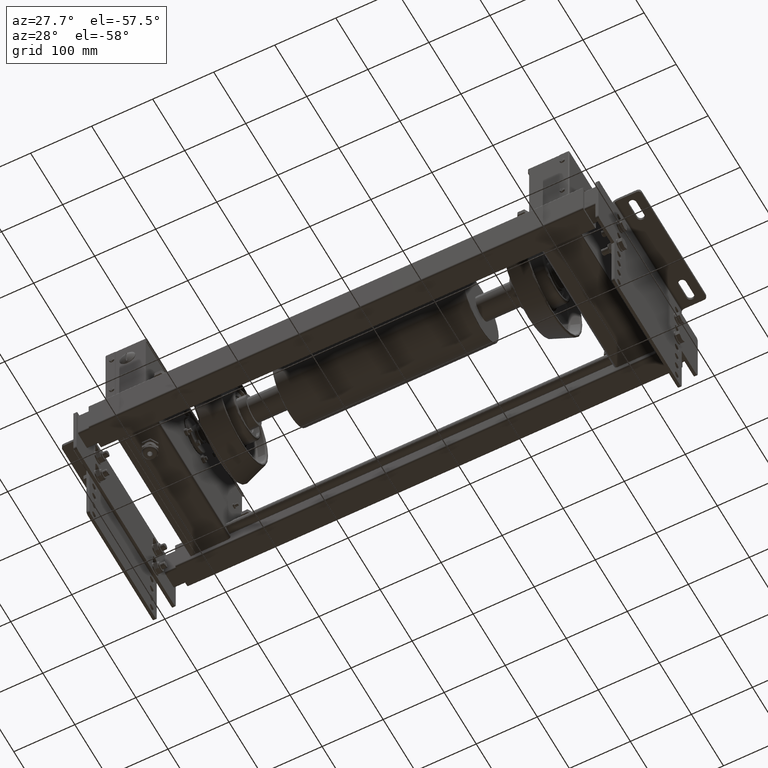
[diagram: clean part render]
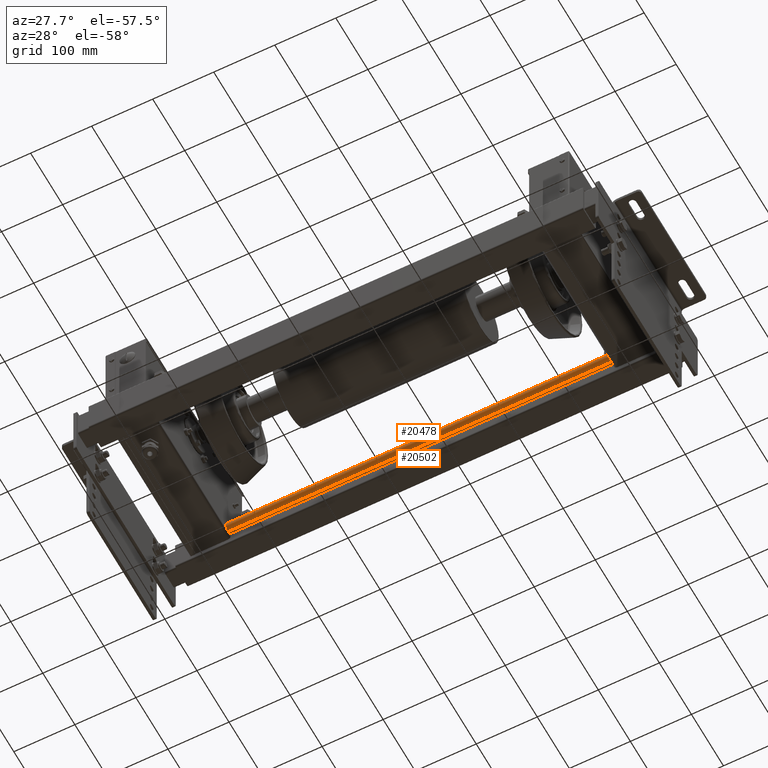
[diagram: same view with one multi-face feature highlighted, each face labeled with its STEP entity id]
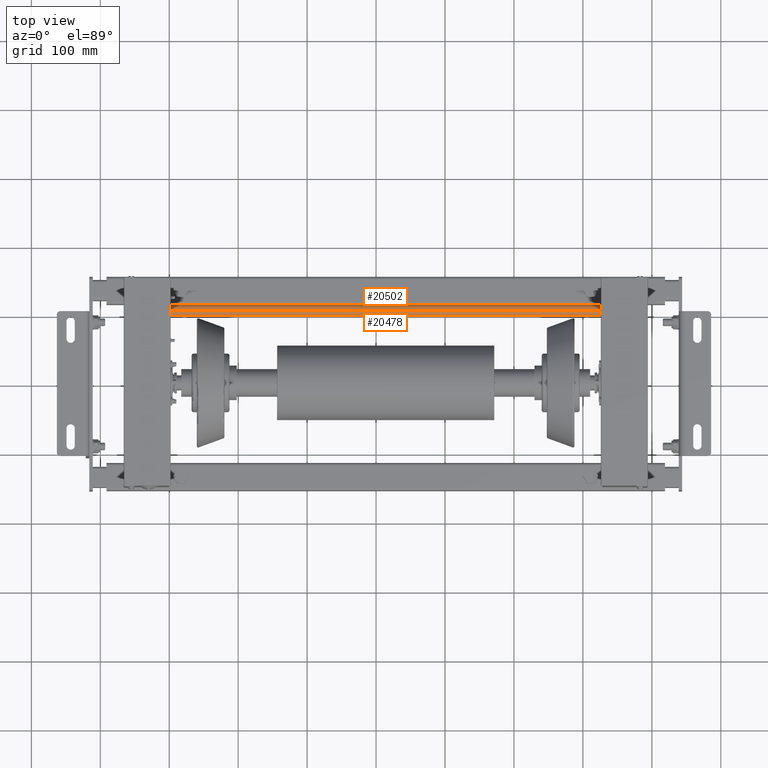
[diagram: same view with one multi-face feature highlighted, each face labeled with its STEP entity id]
A machine part, auxiliary view. The highlighted faces form ONE feature: a constant-radius fillet chain: 2 tangent blend faces with common blend radius 8 mm. The faces share edges in the B-rep.
A second angle (top view) of the same feature is appended — it is thin or edge-on in the first view.
Their STEP definitions:
[1] entity #20478 (Cylinder):
#20437=CARTESIAN_POINT('',(0.0,0.0,-325.0));
#20438=DIRECTION('',(0.0,0.0,1.0));
#20439=DIRECTION('',(1.0,0.0,0.0));
#20440=AXIS2_PLACEMENT_3D('',#20437,#20438,#20439);
#20441=CYLINDRICAL_SURFACE('',#20440,8.0);
#20442=CARTESIAN_POINT('',(8.0,0.0,309.0));
#20443=VERTEX_POINT('',#20442);
#20444=CARTESIAN_POINT('',(8.0,0.0,-325.0));
#20445=VERTEX_POINT('',#20444);
#20446=CARTESIAN_POINT('',(8.0,0.0,309.0));
#20447=DIRECTION('',(0.0,0.0,-1.0));
#20448=VECTOR('',#20447,634.0);
#20449=LINE('',#20446,#20448);
#20450=EDGE_CURVE('',#20443,#20445,#20449,.T.);
#20451=ORIENTED_EDGE('',*,*,#20450,.F.);
#20452=CARTESIAN_POINT('',(-8.0,-9.797174E-016,309.0));
#20453=VERTEX_POINT('',#20452);
#20454=CARTESIAN_POINT('',(0.0,0.0,309.0));
#20455=DIRECTION('',(0.0,0.0,-1.0));
#20456=DIRECTION('',(1.0,0.0,0.0));
#20457=AXIS2_PLACEMENT_3D('',#20454,#20455,#20456);
#20458=CIRCLE('',#20457,8.0);
#20459=EDGE_CURVE('',#20443,#20453,#20458,.T.);
#20460=ORIENTED_EDGE('',*,*,#20459,.T.);
#20461=CARTESIAN_POINT('',(-8.0,-9.797174E-016,-325.0));
#20462=VERTEX_POINT('',#20461);
#20463=CARTESIAN_POINT('',(-8.0,-9.797174E-016,309.0));
#20464=DIRECTION('',(0.0,0.0,-1.0));
#20465=VECTOR('',#20464,634.0);
#20466=LINE('',#20463,#20465);
#20467=EDGE_CURVE('',#20453,#20462,#20466,.T.);
#20468=ORIENTED_EDGE('',*,*,#20467,.T.);
#20469=CARTESIAN_POINT('',(0.0,0.0,-325.0));
#20470=DIRECTION('',(0.0,0.0,1.0));
#20471=DIRECTION('',(1.0,0.0,0.0));
#20472=AXIS2_PLACEMENT_3D('',#20469,#20470,#20471);
#20473=CIRCLE('',#20472,8.0);
#20474=EDGE_CURVE('',#20462,#20445,#20473,.T.);
#20475=ORIENTED_EDGE('',*,*,#20474,.T.);
#20476=EDGE_LOOP('',(#20451,#20460,#20468,#20475));
#20477=FACE_OUTER_BOUND('',#20476,.T.);
#20478=ADVANCED_FACE('',(#20477),#20441,.T.);
[2] entity #20502 (Cylinder):
#20442=CARTESIAN_POINT('',(8.0,0.0,309.0));
#20443=VERTEX_POINT('',#20442);
#20444=CARTESIAN_POINT('',(8.0,0.0,-325.0));
#20445=VERTEX_POINT('',#20444);
#20446=CARTESIAN_POINT('',(8.0,0.0,309.0));
#20447=DIRECTION('',(0.0,0.0,-1.0));
#20448=VECTOR('',#20447,634.0);
#20449=LINE('',#20446,#20448);
#20450=EDGE_CURVE('',#20443,#20445,#20449,.T.);
#20452=CARTESIAN_POINT('',(-8.0,-9.797174E-016,309.0));
#20453=VERTEX_POINT('',#20452);
#20461=CARTESIAN_POINT('',(-8.0,-9.797174E-016,-325.0));
#20462=VERTEX_POINT('',#20461);
#20463=CARTESIAN_POINT('',(-8.0,-9.797174E-016,309.0));
#20464=DIRECTION('',(0.0,0.0,-1.0));
#20465=VECTOR('',#20464,634.0);
#20466=LINE('',#20463,#20465);
#20467=EDGE_CURVE('',#20453,#20462,#20466,.T.);
#20479=CARTESIAN_POINT('',(0.0,0.0,-325.0));
#20480=DIRECTION('',(0.0,0.0,1.0));
#20481=DIRECTION('',(1.0,0.0,0.0));
#20482=AXIS2_PLACEMENT_3D('',#20479,#20480,#20481);
#20483=CYLINDRICAL_SURFACE('',#20482,8.0);
#20484=ORIENTED_EDGE('',*,*,#20450,.T.);
#20485=CARTESIAN_POINT('',(0.0,0.0,-325.0));
#20486=DIRECTION('',(0.0,0.0,1.0));
#20487=DIRECTION('',(1.0,0.0,0.0));
#20488=AXIS2_PLACEMENT_3D('',#20485,#20486,#20487);
#20489=CIRCLE('',#20488,8.0);
#20490=EDGE_CURVE('',#20445,#20462,#20489,.T.);
#20491=ORIENTED_EDGE('',*,*,#20490,.T.);
#20492=ORIENTED_EDGE('',*,*,#20467,.F.);
#20493=CARTESIAN_POINT('',(0.0,0.0,309.0));
#20494=DIRECTION('',(0.0,0.0,-1.0));
#20495=DIRECTION('',(1.0,0.0,0.0));
#20496=AXIS2_PLACEMENT_3D('',#20493,#20494,#20495);
#20497=CIRCLE('',#20496,8.0);
#20498=EDGE_CURVE('',#20453,#20443,#20497,.T.);
#20499=ORIENTED_EDGE('',*,*,#20498,.T.);
#20500=EDGE_LOOP('',(#20484,#20491,#20492,#20499));
#20501=FACE_OUTER_BOUND('',#20500,.T.);
#20502=ADVANCED_FACE('',(#20501),#20483,.T.);